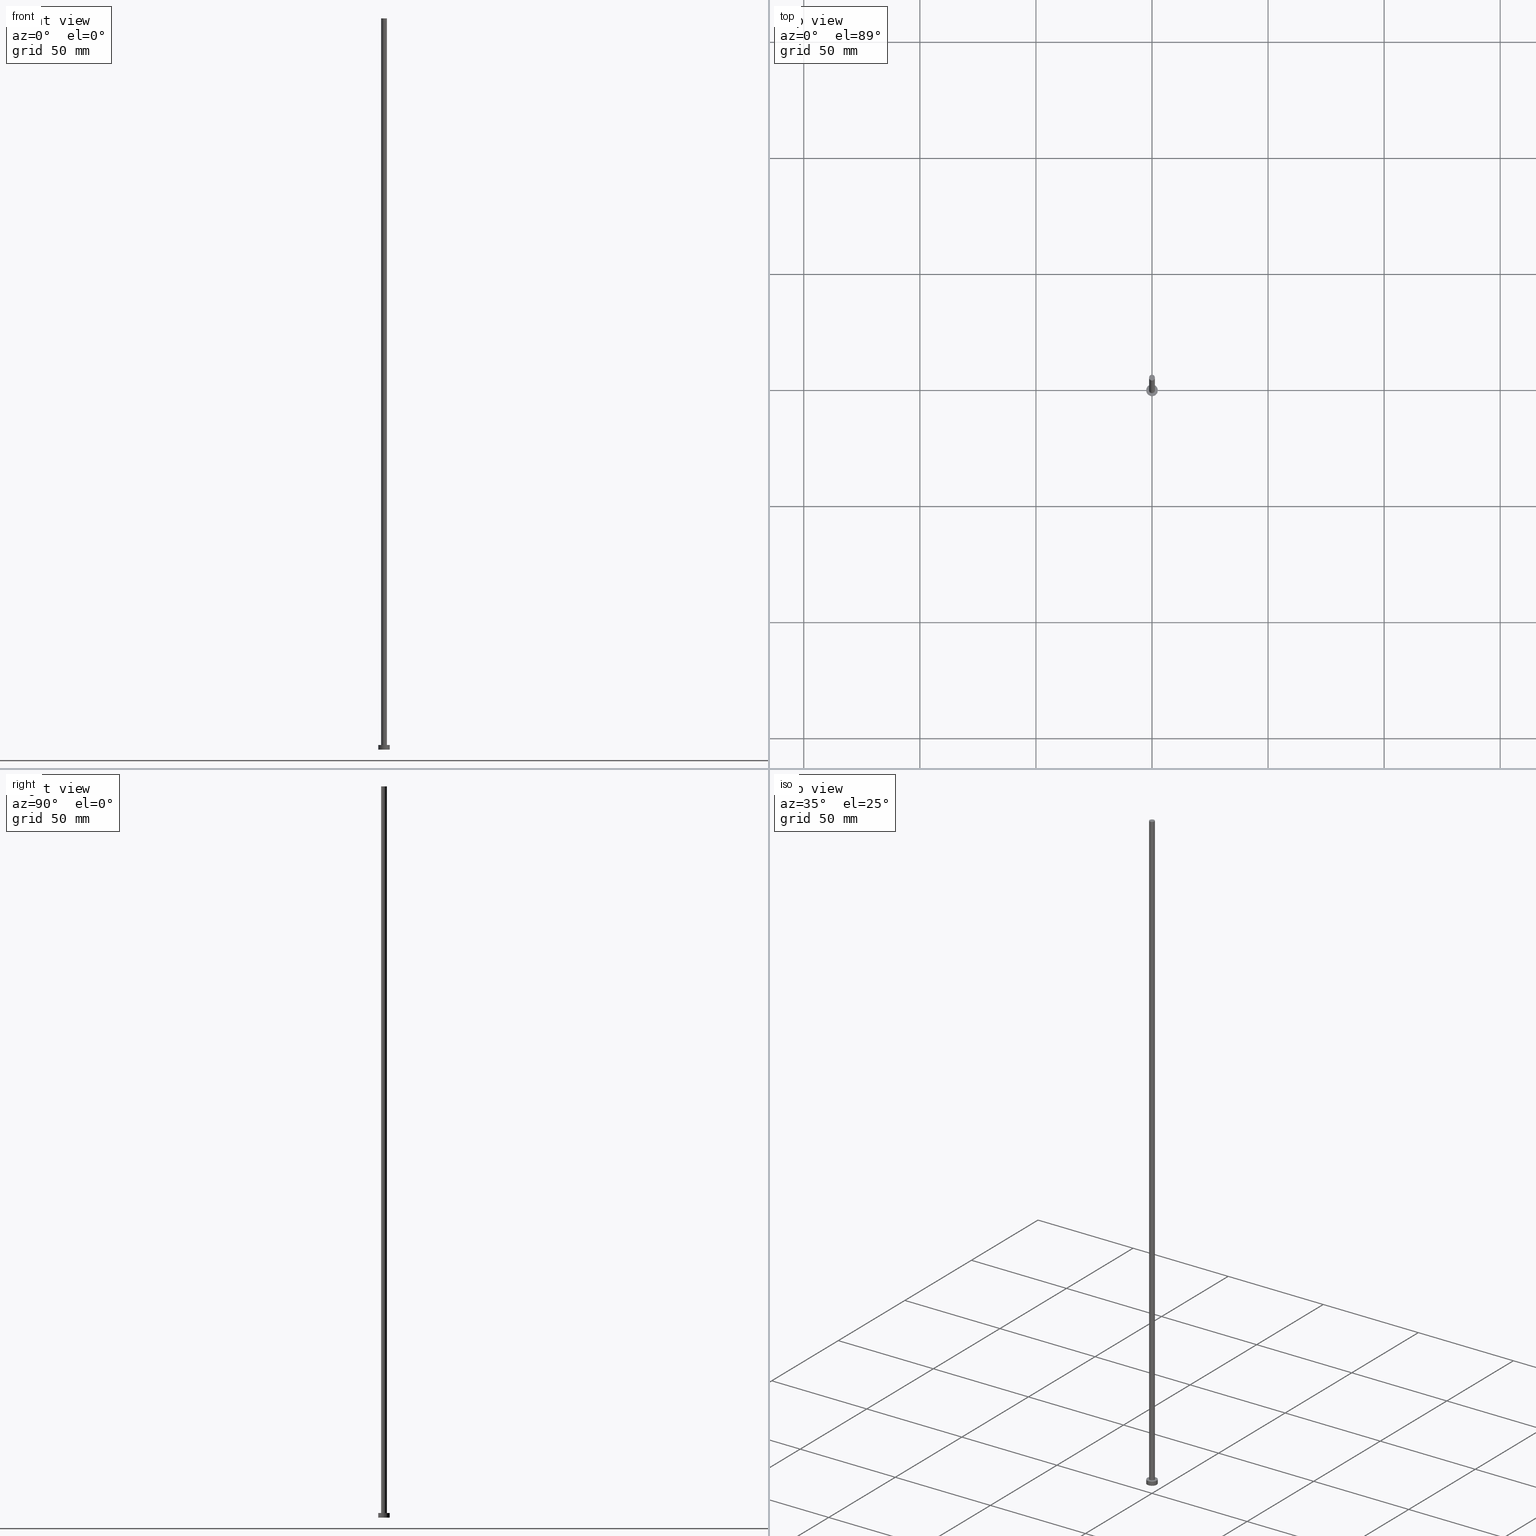
[diagram: canonical four-view strip — front | top / right | iso, engineering-drawing reading convention]
A machine part, canonical four-view strip (front | top / right | iso — engineering-drawing reading convention). The complete STEP part file that produces these views, byte-faithful:
ISO-10303-21;
HEADER;
FILE_DESCRIPTION (( 'STEP AP203' ),
    '1' );
FILE_NAME ('39c0.STEP',
    '2026-02-06T12:31:46',
    ( '' ),
    ( '' ),
    'SwSTEP 2.0',
    'SolidWorks 2019',
    '' );
FILE_SCHEMA (( 'CONFIG_CONTROL_DESIGN' ));
ENDSEC;

DATA;
#1 = SECURITY_CLASSIFICATION ( '', '', #211 ) ;
#2 = COORDINATED_UNIVERSAL_TIME_OFFSET ( 1, 0, .AHEAD. ) ;
#3 = CIRCLE ( 'NONE', #14, 1.250000000000000000 ) ;
#4 = APPROVAL_PERSON_ORGANIZATION ( #68, #174, #202 ) ;
#5 = PRODUCT ( '39c0', '39c0', '', ( #47 ) ) ;
#6 = PERSON_AND_ORGANIZATION_ROLE ( 'design_owner' ) ;
#7 = PRODUCT_DEFINITION ( 'NEZN�M�', '', #131, #234 ) ;
#8 = DIRECTION ( 'NONE',  ( 1.000000000000000000, 0.000000000000000000, 0.000000000000000000 ) ) ;
#9 = EDGE_LOOP ( 'NONE', ( #11, #54, #170, #30 ) ) ;
#10 = MANIFOLD_SOLID_BREP ( 'P�idat vysunut�m3', #95 ) ;
#11 = ORIENTED_EDGE ( 'NONE', *, *, #52, .F. ) ;
#12 = CARTESIAN_POINT ( 'NONE',  ( 0.000000000000000000, 0.000000000000000000, 2.000000000000000000 ) ) ;
#13 = VERTEX_POINT ( 'NONE', #27 ) ;
#14 = AXIS2_PLACEMENT_3D ( 'NONE', #217, #198, #166 ) ;
#15 = APPROVAL_PERSON_ORGANIZATION ( #64, #92, #75 ) ;
#16 = DIRECTION ( 'NONE',  ( 0.000000000000000000, 0.000000000000000000, 1.000000000000000000 ) ) ;
#17 = LINE ( 'NONE', #38, #226 ) ;
#18 = DIRECTION ( 'NONE',  ( 1.000000000000000000, 0.000000000000000000, -0.000000000000000000 ) ) ;
#19 = PERSON_AND_ORGANIZATION ( #137, #22 ) ;
#20 = EDGE_CURVE ( 'NONE', #94, #13, #82, .T. ) ;
#21 = CIRCLE ( 'NONE', #93, 1.250000000000000000 ) ;
#22 = ORGANIZATION ( 'NEUR�EN�', 'NEUR�EN�', '' ) ;
#23 = DIRECTION ( 'NONE',  ( 1.000000000000000000, 0.000000000000000000, 0.000000000000000000 ) ) ;
#24 = COORDINATED_UNIVERSAL_TIME_OFFSET ( 1, 0, .AHEAD. ) ;
#25 = CARTESIAN_POINT ( 'NONE',  ( 0.000000000000000000, 0.000000000000000000, 2.000000000000000000 ) ) ;
#26 = CALENDAR_DATE ( 2026, 6, 2 ) ;
#27 = CARTESIAN_POINT ( 'NONE',  ( -1.250000000000000000, 0.000000000000000000, 2.000000000000000000 ) ) ;
#28 = CALENDAR_DATE ( 2026, 6, 2 ) ;
#29 = LOCAL_TIME ( 13, 31, 46.00000000000000000, #87 ) ;
#30 = ORIENTED_EDGE ( 'NONE', *, *, #83, .F. ) ;
#31 = EDGE_LOOP ( 'NONE', ( #154, #188 ) ) ;
#32 = PRODUCT_RELATED_PRODUCT_CATEGORY ( 'detail', '', ( #5 ) ) ;
#33 = VECTOR ( 'NONE', #237, 1000.000000000000000 ) ;
#34 = VERTEX_POINT ( 'NONE', #147 ) ;
#35 = LINE ( 'NONE', #112, #246 ) ;
#36 = ADVANCED_BREP_SHAPE_REPRESENTATION ( '39c0', ( #10, #59 ), #104 ) ;
#37 = ORIENTED_EDGE ( 'NONE', *, *, #207, .F. ) ;
#38 = CARTESIAN_POINT ( 'NONE',  ( 1.250000000000000000, 1.530808498934191571E-16, 315.0000000000000000 ) ) ;
#39 = CYLINDRICAL_SURFACE ( 'NONE', #253, 2.500000000000000000 ) ;
#40 = SHAPE_DEFINITION_REPRESENTATION ( #65, #36 ) ;
#41 = AXIS2_PLACEMENT_3D ( 'NONE', #98, #16, #173 ) ;
#42 = DIRECTION ( 'NONE',  ( 1.000000000000000000, 0.000000000000000000, 0.000000000000000000 ) ) ;
#43 = CC_DESIGN_APPROVAL ( #143, ( #131 ) ) ;
#44 = APPROVAL_STATUS ( 'not_yet_approved' ) ;
#45 = CARTESIAN_POINT ( 'NONE',  ( 0.000000000000000000, 0.000000000000000000, 315.0000000000000000 ) ) ;
#46 =( LENGTH_UNIT ( ) NAMED_UNIT ( * ) SI_UNIT ( .MILLI., .METRE. ) );
#47 = MECHANICAL_CONTEXT ( 'NONE', #218, 'mechanical' ) ;
#48 = UNCERTAINTY_MEASURE_WITH_UNIT (LENGTH_MEASURE( 1.000000000000000082E-05 ), #46, 'distance_accuracy_value', 'NONE');
#49 = CYLINDRICAL_SURFACE ( 'NONE', #178, 1.250000000000000000 ) ;
#50 = AXIS2_PLACEMENT_3D ( 'NONE', #186, #168, #118 ) ;
#51 = ORIENTED_EDGE ( 'NONE', *, *, #121, .F. ) ;
#52 = EDGE_CURVE ( 'NONE', #34, #243, #156, .T. ) ;
#53 = VERTEX_POINT ( 'NONE', #144 ) ;
#54 = ORIENTED_EDGE ( 'NONE', *, *, #214, .T. ) ;
#55 = FACE_OUTER_BOUND ( 'NONE', #9, .T. ) ;
#56 = FACE_OUTER_BOUND ( 'NONE', #125, .T. ) ;
#57 = DIRECTION ( 'NONE',  ( 1.000000000000000000, 0.000000000000000000, -0.000000000000000000 ) ) ;
#58 = AXIS2_PLACEMENT_3D ( 'NONE', #208, #79, #80 ) ;
#59 = AXIS2_PLACEMENT_3D ( 'NONE', #220, #69, #167 ) ;
#60 = CC_DESIGN_PERSON_AND_ORGANIZATION_ASSIGNMENT ( #19, #162, ( #1 ) ) ;
#61 = CARTESIAN_POINT ( 'NONE',  ( 0.000000000000000000, 0.000000000000000000, 315.0000000000000000 ) ) ;
#62 = AXIS2_PLACEMENT_3D ( 'NONE', #233, #85, #18 ) ;
#63 = EDGE_CURVE ( 'NONE', #13, #94, #3, .T. ) ;
#64 = PERSON_AND_ORGANIZATION ( #137, #22 ) ;
#65 = PRODUCT_DEFINITION_SHAPE ( 'NONE', 'NONE',  #7 ) ;
#66 = PERSON_AND_ORGANIZATION ( #137, #22 ) ;
#67 = DIRECTION ( 'NONE',  ( 0.000000000000000000, 0.000000000000000000, 1.000000000000000000 ) ) ;
#68 = PERSON_AND_ORGANIZATION ( #137, #22 ) ;
#69 = DIRECTION ( 'NONE',  ( 0.000000000000000000, 0.000000000000000000, 1.000000000000000000 ) ) ;
#70 = LINE ( 'NONE', #221, #33 ) ;
#71 = AXIS2_PLACEMENT_3D ( 'NONE', #249, #161, #205 ) ;
#72 = ORIENTED_EDGE ( 'NONE', *, *, #20, .T. ) ;
#73 = ORIENTED_EDGE ( 'NONE', *, *, #108, .F. ) ;
#74 = CARTESIAN_POINT ( 'NONE',  ( 0.000000000000000000, 0.000000000000000000, 0.000000000000000000 ) ) ;
#75 = APPROVAL_ROLE ( '' ) ;
#76 = ORIENTED_EDGE ( 'NONE', *, *, #121, .T. ) ;
#77 = CIRCLE ( 'NONE', #213, 1.250000000000000000 ) ;
#78 = CC_DESIGN_SECURITY_CLASSIFICATION ( #1, ( #131 ) ) ;
#79 = DIRECTION ( 'NONE',  ( 0.000000000000000000, 0.000000000000000000, 1.000000000000000000 ) ) ;
#80 = DIRECTION ( 'NONE',  ( 1.000000000000000000, 0.000000000000000000, 0.000000000000000000 ) ) ;
#81 = DIRECTION ( 'NONE',  ( 1.000000000000000000, 0.000000000000000000, -0.000000000000000000 ) ) ;
#82 = CIRCLE ( 'NONE', #238, 1.250000000000000000 ) ;
#83 = EDGE_CURVE ( 'NONE', #243, #157, #70, .T. ) ;
#84 = PERSON_AND_ORGANIZATION ( #137, #22 ) ;
#85 = DIRECTION ( 'NONE',  ( 0.000000000000000000, 0.000000000000000000, 1.000000000000000000 ) ) ;
#86 = PLANE ( 'NONE',  #62 ) ;
#87 = COORDINATED_UNIVERSAL_TIME_OFFSET ( 1, 0, .AHEAD. ) ;
#88 = LOCAL_TIME ( 13, 31, 46.00000000000000000, #181 ) ;
#89 = DATE_TIME_ROLE ( 'creation_date' ) ;
#90 = ADVANCED_FACE ( 'NONE', ( #151 ), #49, .T. ) ;
#91 = APPLICATION_PROTOCOL_DEFINITION ( 'international standard', 'config_control_design', 1994, #218 ) ;
#92 = APPROVAL ( #229, 'NEUR�EN�' ) ;
#93 = AXIS2_PLACEMENT_3D ( 'NONE', #251, #230, #160 ) ;
#94 = VERTEX_POINT ( 'NONE', #183 ) ;
#95 = CLOSED_SHELL ( 'NONE', ( #248, #150, #99, #255, #185, #90, #153 ) ) ;
#96 = ORIENTED_EDGE ( 'NONE', *, *, #108, .T. ) ;
#97 = ORIENTED_EDGE ( 'NONE', *, *, #20, .F. ) ;
#98 = CARTESIAN_POINT ( 'NONE',  ( 0.000000000000000000, 0.000000000000000000, 0.000000000000000000 ) ) ;
#99 = ADVANCED_FACE ( 'NONE', ( #146 ), #240, .T. ) ;
#100 = CC_DESIGN_DATE_AND_TIME_ASSIGNMENT ( #212, #164, ( #1 ) ) ;
#101 = CARTESIAN_POINT ( 'NONE',  ( 0.000000000000000000, 0.000000000000000000, 315.0000000000000000 ) ) ;
#102 = CC_DESIGN_PERSON_AND_ORGANIZATION_ASSIGNMENT ( #215, #252, ( #131 ) ) ;
#103 = DATE_AND_TIME ( #28, #88 ) ;
#104 =( GEOMETRIC_REPRESENTATION_CONTEXT ( 3 ) GLOBAL_UNCERTAINTY_ASSIGNED_CONTEXT ( ( #48 ) ) GLOBAL_UNIT_ASSIGNED_CONTEXT ( ( #46, #187, #165 ) ) REPRESENTATION_CONTEXT ( 'NONE', 'WORKASPACE' ) );
#105 = CC_DESIGN_PERSON_AND_ORGANIZATION_ASSIGNMENT ( #142, #122, ( #7 ) ) ;
#106 = DIRECTION ( 'NONE',  ( 0.000000000000000000, 0.000000000000000000, 1.000000000000000000 ) ) ;
#107 = ORIENTED_EDGE ( 'NONE', *, *, #148, .F. ) ;
#108 = EDGE_CURVE ( 'NONE', #53, #94, #17, .T. ) ;
#109 = ORIENTED_EDGE ( 'NONE', *, *, #130, .F. ) ;
#110 = AXIS2_PLACEMENT_3D ( 'NONE', #101, #193, #57 ) ;
#111 = ORIENTED_EDGE ( 'NONE', *, *, #171, .F. ) ;
#112 = CARTESIAN_POINT ( 'NONE',  ( 2.500000000000000000, 3.061616997868383141E-16, 2.000000000000000000 ) ) ;
#113 = ORIENTED_EDGE ( 'NONE', *, *, #83, .T. ) ;
#114 = DIRECTION ( 'NONE',  ( 0.000000000000000000, 0.000000000000000000, 1.000000000000000000 ) ) ;
#115 = APPROVAL_DATE_TIME ( #250, #92 ) ;
#116 = CIRCLE ( 'NONE', #41, 2.500000000000000000 ) ;
#117 = CARTESIAN_POINT ( 'NONE',  ( -2.500000000000000000, 0.000000000000000000, 0.000000000000000000 ) ) ;
#118 = DIRECTION ( 'NONE',  ( -1.000000000000000000, 0.000000000000000000, 0.000000000000000000 ) ) ;
#119 = PLANE ( 'NONE',  #110 ) ;
#120 = EDGE_LOOP ( 'NONE', ( #73, #51, #223, #224 ) ) ;
#121 = EDGE_CURVE ( 'NONE', #192, #53, #21, .T. ) ;
#122 = PERSON_AND_ORGANIZATION_ROLE ( 'creator' ) ;
#123 = CARTESIAN_POINT ( 'NONE',  ( 0.000000000000000000, 0.000000000000000000, 2.000000000000000000 ) ) ;
#124 = CC_DESIGN_DATE_AND_TIME_ASSIGNMENT ( #201, #89, ( #7 ) ) ;
#125 = EDGE_LOOP ( 'NONE', ( #109, #96, #72, #111 ) ) ;
#126 = EDGE_LOOP ( 'NONE', ( #128, #97 ) ) ;
#127 = EDGE_LOOP ( 'NONE', ( #76, #172 ) ) ;
#128 = ORIENTED_EDGE ( 'NONE', *, *, #63, .F. ) ;
#129 = DIRECTION ( 'NONE',  ( -0.000000000000000000, -0.000000000000000000, -1.000000000000000000 ) ) ;
#130 = EDGE_CURVE ( 'NONE', #53, #192, #77, .T. ) ;
#131 = PRODUCT_DEFINITION_FORMATION_WITH_SPECIFIED_SOURCE ( 'LIBOVOLN�', '', #5, .NOT_KNOWN. ) ;
#132 = DIRECTION ( 'NONE',  ( -1.000000000000000000, 0.000000000000000000, 0.000000000000000000 ) ) ;
#133 = PERSON_AND_ORGANIZATION_ROLE ( 'creator' ) ;
#134 = LINE ( 'NONE', #177, #145 ) ;
#135 = DATE_AND_TIME ( #26, #199 ) ;
#136 = FACE_OUTER_BOUND ( 'NONE', #31, .T. ) ;
#137 = PERSON ( 'NEUR�EN�', 'NEUR�EN�', 'NEUR�EN�', ('NEUR�EN�'), ('NEUR�EN�'), ('NEUR�EN�') ) ;
#138 = APPLICATION_CONTEXT ( 'configuration controlled 3d designs of mechanical parts and assemblies' ) ;
#139 = CIRCLE ( 'NONE', #71, 2.500000000000000000 ) ;
#140 = CC_DESIGN_APPROVAL ( #92, ( #1 ) ) ;
#141 = APPROVAL_DATE_TIME ( #135, #143 ) ;
#142 = PERSON_AND_ORGANIZATION ( #137, #22 ) ;
#143 = APPROVAL ( #44, 'NEUR�EN�' ) ;
#144 = CARTESIAN_POINT ( 'NONE',  ( 1.250000000000000000, 1.530808498934191571E-16, 315.0000000000000000 ) ) ;
#145 = VECTOR ( 'NONE', #129, 1000.000000000000000 ) ;
#146 = FACE_OUTER_BOUND ( 'NONE', #227, .T. ) ;
#147 = CARTESIAN_POINT ( 'NONE',  ( 2.500000000000000000, 3.061616997868383141E-16, 2.000000000000000000 ) ) ;
#148 = EDGE_CURVE ( 'NONE', #157, #191, #163, .T. ) ;
#149 = APPROVAL_DATE_TIME ( #103, #174 ) ;
#150 = ADVANCED_FACE ( 'NONE', ( #55 ), #39, .T. ) ;
#151 = FACE_OUTER_BOUND ( 'NONE', #120, .T. ) ;
#152 = EDGE_LOOP ( 'NONE', ( #107, #206 ) ) ;
#153 = ADVANCED_FACE ( 'NONE', ( #244 ), #119, .T. ) ;
#154 = ORIENTED_EDGE ( 'NONE', *, *, #207, .T. ) ;
#155 = DIRECTION ( 'NONE',  ( 0.000000000000000000, 0.000000000000000000, 1.000000000000000000 ) ) ;
#156 = CIRCLE ( 'NONE', #219, 2.500000000000000000 ) ;
#157 = VERTEX_POINT ( 'NONE', #117 ) ;
#158 = LOCAL_TIME ( 13, 31, 46.00000000000000000, #2 ) ;
#159 = FACE_OUTER_BOUND ( 'NONE', #152, .T. ) ;
#160 = DIRECTION ( 'NONE',  ( 1.000000000000000000, 0.000000000000000000, 0.000000000000000000 ) ) ;
#161 = DIRECTION ( 'NONE',  ( 0.000000000000000000, 0.000000000000000000, 1.000000000000000000 ) ) ;
#162 = PERSON_AND_ORGANIZATION_ROLE ( 'classification_officer' ) ;
#163 = CIRCLE ( 'NONE', #58, 2.500000000000000000 ) ;
#164 = DATE_TIME_ROLE ( 'classification_date' ) ;
#165 =( NAMED_UNIT ( * ) SI_UNIT ( $, .STERADIAN. ) SOLID_ANGLE_UNIT ( ) );
#166 = DIRECTION ( 'NONE',  ( 1.000000000000000000, 0.000000000000000000, 0.000000000000000000 ) ) ;
#167 = DIRECTION ( 'NONE',  ( 1.000000000000000000, 0.000000000000000000, 0.000000000000000000 ) ) ;
#168 = DIRECTION ( 'NONE',  ( -0.000000000000000000, -0.000000000000000000, -1.000000000000000000 ) ) ;
#169 = CC_DESIGN_APPROVAL ( #174, ( #7 ) ) ;
#170 = ORIENTED_EDGE ( 'NONE', *, *, #235, .T. ) ;
#171 = EDGE_CURVE ( 'NONE', #192, #13, #134, .T. ) ;
#172 = ORIENTED_EDGE ( 'NONE', *, *, #130, .T. ) ;
#173 = DIRECTION ( 'NONE',  ( 1.000000000000000000, 0.000000000000000000, 0.000000000000000000 ) ) ;
#174 = APPROVAL ( #239, 'NEUR�EN�' ) ;
#175 = CYLINDRICAL_SURFACE ( 'NONE', #194, 1.250000000000000000 ) ;
#176 = CALENDAR_DATE ( 2026, 6, 2 ) ;
#177 = CARTESIAN_POINT ( 'NONE',  ( -1.250000000000000000, 0.000000000000000000, 315.0000000000000000 ) ) ;
#178 = AXIS2_PLACEMENT_3D ( 'NONE', #45, #241, #203 ) ;
#179 = DIRECTION ( 'NONE',  ( -0.000000000000000000, -0.000000000000000000, -1.000000000000000000 ) ) ;
#180 = FACE_BOUND ( 'NONE', #126, .T. ) ;
#181 = COORDINATED_UNIVERSAL_TIME_OFFSET ( 1, 0, .AHEAD. ) ;
#182 = PERSON_AND_ORGANIZATION ( #137, #22 ) ;
#183 = CARTESIAN_POINT ( 'NONE',  ( 1.250000000000000000, 1.530808498934191571E-16, 2.000000000000000000 ) ) ;
#184 = LOCAL_TIME ( 13, 31, 46.00000000000000000, #190 ) ;
#185 = ADVANCED_FACE ( 'NONE', ( #159 ), #231, .F. ) ;
#186 = CARTESIAN_POINT ( 'NONE',  ( 0.000000000000000000, 0.000000000000000000, 2.000000000000000000 ) ) ;
#187 =( NAMED_UNIT ( * ) PLANE_ANGLE_UNIT ( ) SI_UNIT ( $, .RADIAN. ) );
#188 = ORIENTED_EDGE ( 'NONE', *, *, #52, .T. ) ;
#189 = ORIENTED_EDGE ( 'NONE', *, *, #148, .T. ) ;
#190 = COORDINATED_UNIVERSAL_TIME_OFFSET ( 1, 0, .AHEAD. ) ;
#191 = VERTEX_POINT ( 'NONE', #225 ) ;
#192 = VERTEX_POINT ( 'NONE', #195 ) ;
#193 = DIRECTION ( 'NONE',  ( 0.000000000000000000, 0.000000000000000000, 1.000000000000000000 ) ) ;
#194 = AXIS2_PLACEMENT_3D ( 'NONE', #61, #179, #254 ) ;
#195 = CARTESIAN_POINT ( 'NONE',  ( -1.250000000000000000, 0.000000000000000000, 315.0000000000000000 ) ) ;
#196 = DIRECTION ( 'NONE',  ( -0.000000000000000000, -0.000000000000000000, -1.000000000000000000 ) ) ;
#197 = CALENDAR_DATE ( 2026, 6, 2 ) ;
#198 = DIRECTION ( 'NONE',  ( 0.000000000000000000, 0.000000000000000000, 1.000000000000000000 ) ) ;
#199 = LOCAL_TIME ( 13, 31, 46.00000000000000000, #24 ) ;
#200 = APPROVAL_ROLE ( '' ) ;
#201 = DATE_AND_TIME ( #197, #158 ) ;
#202 = APPROVAL_ROLE ( '' ) ;
#203 = DIRECTION ( 'NONE',  ( -1.000000000000000000, 0.000000000000000000, 0.000000000000000000 ) ) ;
#204 = ORIENTED_EDGE ( 'NONE', *, *, #214, .F. ) ;
#205 = DIRECTION ( 'NONE',  ( 1.000000000000000000, 0.000000000000000000, 0.000000000000000000 ) ) ;
#206 = ORIENTED_EDGE ( 'NONE', *, *, #235, .F. ) ;
#207 = EDGE_CURVE ( 'NONE', #243, #34, #139, .T. ) ;
#208 = CARTESIAN_POINT ( 'NONE',  ( 0.000000000000000000, 0.000000000000000000, 0.000000000000000000 ) ) ;
#209 = CC_DESIGN_PERSON_AND_ORGANIZATION_ASSIGNMENT ( #84, #133, ( #131 ) ) ;
#210 = CARTESIAN_POINT ( 'NONE',  ( 0.000000000000000000, 0.000000000000000000, 315.0000000000000000 ) ) ;
#211 = SECURITY_CLASSIFICATION_LEVEL ( 'unclassified' ) ;
#212 = DATE_AND_TIME ( #232, #29 ) ;
#213 = AXIS2_PLACEMENT_3D ( 'NONE', #210, #114, #42 ) ;
#214 = EDGE_CURVE ( 'NONE', #34, #191, #35, .T. ) ;
#215 = PERSON_AND_ORGANIZATION ( #137, #22 ) ;
#216 = CC_DESIGN_PERSON_AND_ORGANIZATION_ASSIGNMENT ( #182, #6, ( #5 ) ) ;
#217 = CARTESIAN_POINT ( 'NONE',  ( 0.000000000000000000, 0.000000000000000000, 2.000000000000000000 ) ) ;
#218 = APPLICATION_CONTEXT ( 'configuration controlled 3d designs of mechanical parts and assemblies' ) ;
#219 = AXIS2_PLACEMENT_3D ( 'NONE', #25, #106, #8 ) ;
#220 = CARTESIAN_POINT ( 'NONE',  ( 0.000000000000000000, 0.000000000000000000, 0.000000000000000000 ) ) ;
#221 = CARTESIAN_POINT ( 'NONE',  ( -2.500000000000000000, 0.000000000000000000, 2.000000000000000000 ) ) ;
#222 = APPROVAL_PERSON_ORGANIZATION ( #66, #143, #200 ) ;
#223 = ORIENTED_EDGE ( 'NONE', *, *, #171, .T. ) ;
#224 = ORIENTED_EDGE ( 'NONE', *, *, #63, .T. ) ;
#225 = CARTESIAN_POINT ( 'NONE',  ( 2.500000000000000000, 3.061616997868383141E-16, 0.000000000000000000 ) ) ;
#226 = VECTOR ( 'NONE', #196, 1000.000000000000000 ) ;
#227 = EDGE_LOOP ( 'NONE', ( #204, #37, #113, #189 ) ) ;
#228 = DIRECTION ( 'NONE',  ( -0.000000000000000000, -0.000000000000000000, -1.000000000000000000 ) ) ;
#229 = APPROVAL_STATUS ( 'not_yet_approved' ) ;
#230 = DIRECTION ( 'NONE',  ( 0.000000000000000000, 0.000000000000000000, 1.000000000000000000 ) ) ;
#231 = PLANE ( 'NONE',  #245 ) ;
#232 = CALENDAR_DATE ( 2026, 6, 2 ) ;
#233 = CARTESIAN_POINT ( 'NONE',  ( 0.000000000000000000, 0.000000000000000000, 2.000000000000000000 ) ) ;
#234 = DESIGN_CONTEXT ( 'detailed design', #138, 'design' ) ;
#235 = EDGE_CURVE ( 'NONE', #191, #157, #116, .T. ) ;
#236 = APPLICATION_PROTOCOL_DEFINITION ( 'international standard', 'config_control_design', 1994, #138 ) ;
#237 = DIRECTION ( 'NONE',  ( -0.000000000000000000, -0.000000000000000000, -1.000000000000000000 ) ) ;
#238 = AXIS2_PLACEMENT_3D ( 'NONE', #123, #67, #23 ) ;
#239 = APPROVAL_STATUS ( 'not_yet_approved' ) ;
#240 = CYLINDRICAL_SURFACE ( 'NONE', #50, 2.500000000000000000 ) ;
#241 = DIRECTION ( 'NONE',  ( -0.000000000000000000, -0.000000000000000000, -1.000000000000000000 ) ) ;
#242 = DIRECTION ( 'NONE',  ( -0.000000000000000000, -0.000000000000000000, -1.000000000000000000 ) ) ;
#243 = VERTEX_POINT ( 'NONE', #247 ) ;
#244 = FACE_OUTER_BOUND ( 'NONE', #127, .T. ) ;
#245 = AXIS2_PLACEMENT_3D ( 'NONE', #74, #155, #81 ) ;
#246 = VECTOR ( 'NONE', #228, 1000.000000000000000 ) ;
#247 = CARTESIAN_POINT ( 'NONE',  ( -2.500000000000000000, 0.000000000000000000, 2.000000000000000000 ) ) ;
#248 = ADVANCED_FACE ( 'NONE', ( #56 ), #175, .T. ) ;
#249 = CARTESIAN_POINT ( 'NONE',  ( 0.000000000000000000, 0.000000000000000000, 2.000000000000000000 ) ) ;
#250 = DATE_AND_TIME ( #176, #184 ) ;
#251 = CARTESIAN_POINT ( 'NONE',  ( 0.000000000000000000, 0.000000000000000000, 315.0000000000000000 ) ) ;
#252 = PERSON_AND_ORGANIZATION_ROLE ( 'design_supplier' ) ;
#253 = AXIS2_PLACEMENT_3D ( 'NONE', #12, #242, #132 ) ;
#254 = DIRECTION ( 'NONE',  ( -1.000000000000000000, 0.000000000000000000, 0.000000000000000000 ) ) ;
#255 = ADVANCED_FACE ( 'NONE', ( #180, #136 ), #86, .T. ) ;
ENDSEC;
END-ISO-10303-21;
